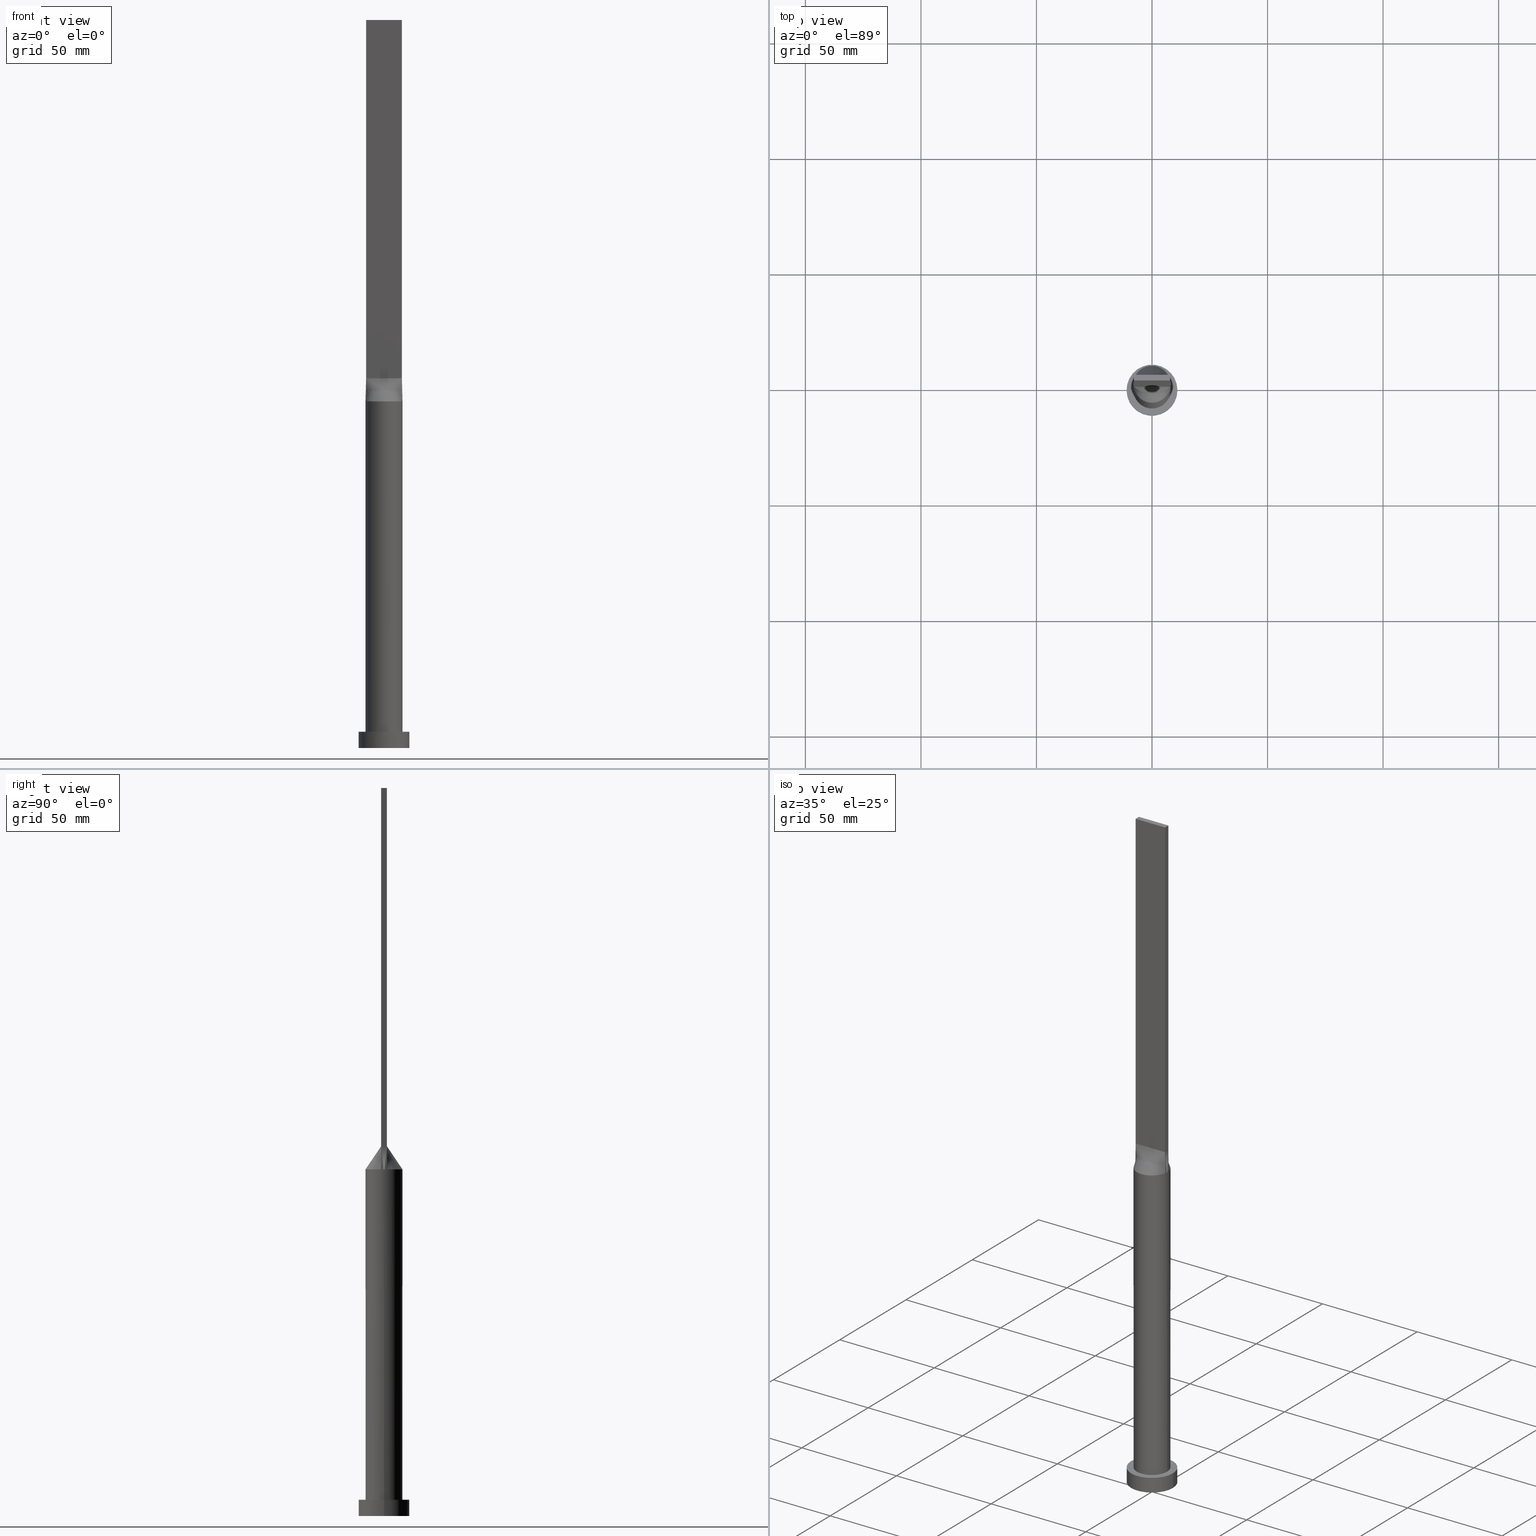
[diagram: canonical four-view strip — front | top / right | iso, engineering-drawing reading convention]
A machine part, canonical four-view strip (front | top / right | iso — engineering-drawing reading convention). The complete STEP part file that produces these views, byte-faithful:
ISO-10303-21;
HEADER;
FILE_DESCRIPTION (( 'STEP AP203' ),
    '1' );
FILE_NAME ('68cf.STEP',
    '2023-02-13T08:48:07',
    ( '' ),
    ( '' ),
    'SwSTEP 2.0',
    'SolidWorks 2019',
    '' );
FILE_SCHEMA (( 'CONFIG_CONTROL_DESIGN' ));
ENDSEC;

DATA;
#1 = EDGE_CURVE ( 'NONE', #638, #161, #126, .T. ) ;
#2 = CARTESIAN_POINT ( 'NONE',  ( 6.883287261198673512, 4.100742229440780484, 150.0000000000000284 ) ) ;
#3 = CARTESIAN_POINT ( 'NONE',  ( 7.597511974649646227, 2.632154125590748350, 149.9999999999999716 ) ) ;
#4 = CALENDAR_DATE ( 2023, 13, 2 ) ;
#5 = CARTESIAN_POINT ( 'NONE',  ( 4.217034177653714799, 6.817775467282659818, 150.0000000000000284 ) ) ;
#6 = CARTESIAN_POINT ( 'NONE',  ( -8.000000000000000000, 0.000000000000000000, 7.000000000000000000 ) ) ;
#7 = CARTESIAN_POINT ( 'NONE',  ( -6.389139692789916225, 4.834731051311460526, 150.0000000000000284 ) ) ;
#8 = CARTESIAN_POINT ( 'NONE',  ( 2.232993174580878204, 7.702525839322459156, 150.0000000000000284 ) ) ;
#9 = CARTESIAN_POINT ( 'NONE',  ( 0.000000000000000000, 0.000000000000000000, 150.0000000000000000 ) ) ;
#10 = ORIENTED_EDGE ( 'NONE', *, *, #166, .F. ) ;
#11 = APPROVAL_STATUS ( 'not_yet_approved' ) ;
#12 = ORIENTED_EDGE ( 'NONE', *, *, #401, .T. ) ;
#13 = EDGE_CURVE ( 'NONE', #48, #161, #282, .T. ) ;
#14 = APPROVAL_DATE_TIME ( #113, #145 ) ;
#15 = VECTOR ( 'NONE', #130, 1000.000000000000000 ) ;
#16 = CARTESIAN_POINT ( 'NONE',  ( -1.291666666666665408, 1.250000000000000222, 159.9999999999999716 ) ) ;
#17 = ORIENTED_EDGE ( 'NONE', *, *, #66, .T. ) ;
#18 = CARTESIAN_POINT ( 'NONE',  ( -5.434261125067508580, -5.890653037160103800, 150.0000000000000284 ) ) ;
#19 = VERTEX_POINT ( 'NONE', #341 ) ;
#20 = ADVANCED_FACE ( 'NONE', ( #88 ), #537, .T. ) ;
#21 = CARTESIAN_POINT ( 'NONE',  ( -2.762781956618985291, 7.527418670504290255, 150.0000000000000000 ) ) ;
#22 = ORIENTED_EDGE ( 'NONE', *, *, #1, .T. ) ;
#23 = DIRECTION ( 'NONE',  ( 1.000000000000000000, 0.000000000000000000, -0.000000000000000000 ) ) ;
#24 = CC_DESIGN_PERSON_AND_ORGANIZATION_ASSIGNMENT ( #560, #318, ( #187 ) ) ;
#25 = ORIENTED_EDGE ( 'NONE', *, *, #401, .F. ) ;
#26 = CARTESIAN_POINT ( 'NONE',  ( -4.217034177653715687, -6.817775467282659818, 150.0000000000000284 ) ) ;
#27 = SECURITY_CLASSIFICATION ( '', '', #152 ) ;
#28 = DIRECTION ( 'NONE',  ( -1.000000000000000000, -0.000000000000000000, -0.000000000000000000 ) ) ;
#29 = CIRCLE ( 'NONE', #565, 8.000000000000000000 ) ;
#30 = ORIENTED_EDGE ( 'NONE', *, *, #193, .F. ) ;
#31 = FACE_OUTER_BOUND ( 'NONE', #86, .T. ) ;
#32 = DIRECTION ( 'NONE',  ( 1.000000000000000000, 0.000000000000000000, 0.000000000000000000 ) ) ;
#33 = EDGE_CURVE ( 'NONE', #159, #214, #289, .T. ) ;
#34 = LINE ( 'NONE', #218, #482 ) ;
#35 = CARTESIAN_POINT ( 'NONE',  ( -5.489583333333333925, 1.250000000000000222, 160.0000000000000284 ) ) ;
#36 = DIRECTION ( 'NONE',  ( -0.000000000000000000, -0.000000000000000000, -1.000000000000000000 ) ) ;
#37 = CARTESIAN_POINT ( 'NONE',  ( 7.750000000000000000, -1.249999999999999778, 315.0000000000000000 ) ) ;
#38 = DIRECTION ( 'NONE',  ( 0.000000000000000000, -1.000000000000000000, 0.000000000000000000 ) ) ;
#39 = CARTESIAN_POINT ( 'NONE',  ( -7.750000000000000000, -1.249999999999998890, 160.0000000000000000 ) ) ;
#40 = CARTESIAN_POINT ( 'NONE',  ( 1.291666666666666741, -1.249999999999999112, 159.9999999999999716 ) ) ;
#41 = EDGE_CURVE ( 'NONE', #159, #165, #345, .T. ) ;
#42 = LINE ( 'NONE', #174, #453 ) ;
#43 = CARTESIAN_POINT ( 'NONE',  ( -7.750000000000000000, -1.249999999999998890, 315.0000000000000000 ) ) ;
#44 = CARTESIAN_POINT ( 'NONE',  ( 2.232993174580876428, -7.702525839322460044, 150.0000000000000000 ) ) ;
#45 = CARTESIAN_POINT ( 'NONE',  ( 11.00000000000000000, 1.347111479062088405E-15, 7.000000000000000000 ) ) ;
#46 = CARTESIAN_POINT ( 'NONE',  ( 4.520833333333333925, -1.249999999999999778, 160.0000000000000284 ) ) ;
#47 = CC_DESIGN_APPROVAL ( #145, ( #27 ) ) ;
#48 = VERTEX_POINT ( 'NONE', #185 ) ;
#49 = ADVANCED_FACE ( 'NONE', ( #536 ), #136, .T. ) ;
#50 = DIRECTION ( 'NONE',  ( 1.000000000000000000, 0.000000000000000000, 0.000000000000000000 ) ) ;
#51 = CARTESIAN_POINT ( 'NONE',  ( 7.897928965701177084, -1.273859510596965006, 150.0000000000000000 ) ) ;
#52 = LINE ( 'NONE', #199, #213 ) ;
#53 = CC_DESIGN_PERSON_AND_ORGANIZATION_ASSIGNMENT ( #313, #110, ( #398 ) ) ;
#54 = COORDINATED_UNIVERSAL_TIME_OFFSET ( 1, 0, .AHEAD. ) ;
#55 = CARTESIAN_POINT ( 'NONE',  ( 2.232993174580878204, 7.702525839322459156, 150.0000000000000284 ) ) ;
#56 = CARTESIAN_POINT ( 'NONE',  ( 3.754841939107309567, 7.084924699190306541, 150.0000000000000000 ) ) ;
#57 = EDGE_LOOP ( 'NONE', ( #215, #569, #30, #426 ) ) ;
#58 = APPROVAL_ROLE ( '' ) ;
#59 = VECTOR ( 'NONE', #384, 1000.000000000000000 ) ;
#60 = CARTESIAN_POINT ( 'NONE',  ( -5.434261125067506804, 5.890653037160105576, 150.0000000000000000 ) ) ;
#61 = CARTESIAN_POINT ( 'NONE',  ( 7.793128424795161990, 1.923622864214272088, 150.0000000000000000 ) ) ;
#62 = CARTESIAN_POINT ( 'NONE',  ( 5.056714967162550423, 6.220536417275850383, 150.0000000000000284 ) ) ;
#63 = ORIENTED_EDGE ( 'NONE', *, *, #33, .T. ) ;
#64 = CALENDAR_DATE ( 2023, 13, 2 ) ;
#65 = ORIENTED_EDGE ( 'NONE', *, *, #306, .F. ) ;
#66 = EDGE_CURVE ( 'NONE', #112, #257, #382, .T. ) ;
#67 = CARTESIAN_POINT ( 'NONE',  ( -7.597511974649646227, -2.632154125590747906, 149.9999999999999716 ) ) ;
#68 = LOCAL_TIME ( 9, 48, 7.000000000000000000, #509 ) ;
#69 = VECTOR ( 'NONE', #583, 1000.000000000000227 ) ;
#70 = ORIENTED_EDGE ( 'NONE', *, *, #249, .T. ) ;
#71 = ORIENTED_EDGE ( 'NONE', *, *, #227, .F. ) ;
#72 = CARTESIAN_POINT ( 'NONE',  ( 7.750000000000000000, -0.4166666666666669627, 159.9999999999999716 ) ) ;
#73 = ORIENTED_EDGE ( 'NONE', *, *, #114, .F. ) ;
#74 = ORIENTED_EDGE ( 'NONE', *, *, #615, .F. ) ;
#75 = DIRECTION ( 'NONE',  ( -0.01479123618026849905, 0.002385683254881964914, 0.9998877576246579801 ) ) ;
#76 = CARTESIAN_POINT ( 'NONE',  ( -6.100409024666552327, 5.197691498289451317, 150.0000000000000000 ) ) ;
#77 = ORIENTED_EDGE ( 'NONE', *, *, #227, .T. ) ;
#78 = CARTESIAN_POINT ( 'NONE',  ( -3.552083333333333481, -1.249999999999998890, 160.0000000000000284 ) ) ;
#79 = AXIS2_PLACEMENT_3D ( 'NONE', #323, #526, #23 ) ;
#80 = AXIS2_PLACEMENT_3D ( 'NONE', #212, #562, #554 ) ;
#81 = PRODUCT_DEFINITION_SHAPE ( 'NONE', 'NONE',  #300 ) ;
#82 = VECTOR ( 'NONE', #38, 1000.000000000000000 ) ;
#83 = DIRECTION ( 'NONE',  ( -0.000000000000000000, -0.000000000000000000, -1.000000000000000000 ) ) ;
#84 = CARTESIAN_POINT ( 'NONE',  ( 7.750000000000000000, 1.250000000000000222, 160.0000000000000000 ) ) ;
#85 = DIRECTION ( 'NONE',  ( 0.000000000000000000, 0.000000000000000000, 1.000000000000000000 ) ) ;
#86 = EDGE_LOOP ( 'NONE', ( #368, #322, #116, #10, #231, #98 ) ) ;
#87 = CARTESIAN_POINT ( 'NONE',  ( -0.5677556330368861426, -7.999999999999998224, 150.0000000000000000 ) ) ;
#88 = FACE_OUTER_BOUND ( 'NONE', #477, .T. ) ;
#89 = ADVANCED_FACE ( 'NONE', ( #629 ), #297, .F. ) ;
#90 = CARTESIAN_POINT ( 'NONE',  ( 6.389139692789917113, -4.834731051311460526, 150.0000000000000284 ) ) ;
#91 = DIRECTION ( 'NONE',  ( 0.000000000000000000, 0.000000000000000000, 1.000000000000000000 ) ) ;
#92 = CARTESIAN_POINT ( 'NONE',  ( 4.197916666666667851, -1.249999999999999778, 160.0000000000000284 ) ) ;
#93 = CARTESIAN_POINT ( 'NONE',  ( -7.750000000000000000, 1.250000000000000222, 160.0000000000000000 ) ) ;
#94 = CARTESIAN_POINT ( 'NONE',  ( 0.000000000000000000, 0.000000000000000000, 7.000000000000000000 ) ) ;
#95 = CARTESIAN_POINT ( 'NONE',  ( 3.552083333333333481, -1.249999999999999778, 160.0000000000000284 ) ) ;
#96 = CARTESIAN_POINT ( 'NONE',  ( 5.056714967162550423, 6.220536417275850383, 150.0000000000000284 ) ) ;
#97 = CARTESIAN_POINT ( 'NONE',  ( 6.458333333333333037, 1.250000000000000222, 159.9999999999999716 ) ) ;
#98 = ORIENTED_EDGE ( 'NONE', *, *, #615, .T. ) ;
#99 = DIRECTION ( 'NONE',  ( -1.000000000000000000, 0.000000000000000000, 0.000000000000000000 ) ) ;
#100 = FACE_OUTER_BOUND ( 'NONE', #567, .T. ) ;
#101 = CARTESIAN_POINT ( 'NONE',  ( 7.897928965701177084, 1.273859510596963451, 150.0000000000000000 ) ) ;
#102 = CARTESIAN_POINT ( 'NONE',  ( 7.088837466865212988, 3.729743859143727303, 150.0000000000000284 ) ) ;
#103 = CARTESIAN_POINT ( 'NONE',  ( 3.229166666666667407, 1.250000000000000222, 160.0000000000000284 ) ) ;
#104 = DATE_AND_TIME ( #64, #163 ) ;
#105 = CARTESIAN_POINT ( 'NONE',  ( -0.5677556330368852544, 7.999999999999998224, 150.0000000000000000 ) ) ;
#106 = DIRECTION ( 'NONE',  ( 0.000000000000000000, -1.000000000000000000, 0.000000000000000000 ) ) ;
#107 = CLOSED_SHELL ( 'NONE', ( #132, #155, #49, #441, #472, #503, #513, #432, #20, #270, #373, #286, #89, #535, #316 ) ) ;
#108 = DIRECTION ( 'NONE',  ( -0.000000000000000000, -0.000000000000000000, -1.000000000000000000 ) ) ;
#109 = AXIS2_PLACEMENT_3D ( 'NONE', #402, #552, #510 ) ;
#110 = PERSON_AND_ORGANIZATION_ROLE ( 'creator' ) ;
#111 = AXIS2_PLACEMENT_3D ( 'NONE', #434, #135, #338 ) ;
#112 = VERTEX_POINT ( 'NONE', #45 ) ;
#113 = DATE_AND_TIME ( #566, #427 ) ;
#114 = EDGE_CURVE ( 'NONE', #257, #413, #192, .T. ) ;
#115 = ORIENTED_EDGE ( 'NONE', *, *, #444, .T. ) ;
#116 = ORIENTED_EDGE ( 'NONE', *, *, #342, .F. ) ;
#117 = PLANE ( 'NONE',  #79 ) ;
#118 = LOCAL_TIME ( 9, 48, 7.000000000000000000, #54 ) ;
#119 = VECTOR ( 'NONE', #28, 1000.000000000000000 ) ;
#120 = ORIENTED_EDGE ( 'NONE', *, *, #41, .F. ) ;
#121 = EDGE_LOOP ( 'NONE', ( #272, #170, #156, #77 ) ) ;
#122 = CARTESIAN_POINT ( 'NONE',  ( -7.793128424795161990, -1.923622864214270978, 150.0000000000000000 ) ) ;
#123 = ORIENTED_EDGE ( 'NONE', *, *, #150, .T. ) ;
#124 = LINE ( 'NONE', #573, #408 ) ;
#125 = DIRECTION ( 'NONE',  ( 0.000000000000000000, -0.000000000000000000, -1.000000000000000000 ) ) ;
#126 = LINE ( 'NONE', #495, #449 ) ;
#127 = CARTESIAN_POINT ( 'NONE',  ( 7.999348843997323044, 0.4273286734864459868, 150.0000000000000000 ) ) ;
#128 = CARTESIAN_POINT ( 'NONE',  ( 0.000000000000000000, 0.000000000000000000, 150.0000000000000000 ) ) ;
#129 = DIRECTION ( 'NONE',  ( -1.000000000000000000, 0.000000000000000000, 0.000000000000000000 ) ) ;
#130 = DIRECTION ( 'NONE',  ( -0.000000000000000000, -0.000000000000000000, -1.000000000000000000 ) ) ;
#131 = CARTESIAN_POINT ( 'NONE',  ( 7.897939137640443974, 1.273861156091724789, 150.0000000000000000 ) ) ;
#132 = ADVANCED_FACE ( 'NONE', ( #586 ), #241, .T. ) ;
#133 = CARTESIAN_POINT ( 'NONE',  ( -7.999348843997323044, -0.4273286734864455427, 150.0000000000000000 ) ) ;
#134 = CARTESIAN_POINT ( 'NONE',  ( 3.229166666666666519, -1.249999999999999778, 160.0000000000000284 ) ) ;
#135 = DIRECTION ( 'NONE',  ( 1.000000000000000000, 0.000000000000000000, -0.000000000000000000 ) ) ;
#136 = CYLINDRICAL_SURFACE ( 'NONE', #415, 11.00000000000000000 ) ;
#137 = CARTESIAN_POINT ( 'NONE',  ( 2.260416666666666519, -1.249999999999999334, 159.9999999999999716 ) ) ;
#138 = CARTESIAN_POINT ( 'NONE',  ( -7.750000000000000000, 1.250000000000000222, 315.0000000000000000 ) ) ;
#139 = CARTESIAN_POINT ( 'NONE',  ( -7.750000000000000000, 0.4166666666666691277, 159.9999999999999716 ) ) ;
#140 = CARTESIAN_POINT ( 'NONE',  ( -2.232993174580879092, -7.702525839322459156, 150.0000000000000284 ) ) ;
#141 = DIRECTION ( 'NONE',  ( 1.000000000000000000, 1.776356839400250465E-15, 0.000000000000000000 ) ) ;
#142 = CARTESIAN_POINT ( 'NONE',  ( 1.614583333333333259, -1.249999999999999334, 159.9999999999999716 ) ) ;
#143 = DATE_AND_TIME ( #251, #68 ) ;
#144 = AXIS2_PLACEMENT_3D ( 'NONE', #635, #435, #578 ) ;
#145 = APPROVAL ( #365, 'NEUR�EN�' ) ;
#146 = CARTESIAN_POINT ( 'NONE',  ( 7.965542217898607724, -0.8546573469728951933, 150.0000000000000000 ) ) ;
#147 = DIRECTION ( 'NONE',  ( 0.000000000000000000, 1.000000000000000000, 0.000000000000000000 ) ) ;
#148 = AXIS2_PLACEMENT_3D ( 'NONE', #375, #321, #327 ) ;
#149 = CARTESIAN_POINT ( 'NONE',  ( 2.260416666666668295, 1.250000000000000222, 160.0000000000000000 ) ) ;
#150 = EDGE_CURVE ( 'NONE', #550, #413, #175, .T. ) ;
#151 = DIRECTION ( 'NONE',  ( 0.000000000000000000, 0.000000000000000000, 1.000000000000000000 ) ) ;
#152 = SECURITY_CLASSIFICATION_LEVEL ( 'unclassified' ) ;
#153 = ORIENTED_EDGE ( 'NONE', *, *, #580, .F. ) ;
#154 = APPROVAL_DATE_TIME ( #104, #475 ) ;
#155 = ADVANCED_FACE ( 'NONE', ( #225 ), #623, .T. ) ;
#156 = ORIENTED_EDGE ( 'NONE', *, *, #114, .T. ) ;
#157 = CC_DESIGN_PERSON_AND_ORGANIZATION_ASSIGNMENT ( #516, #363, ( #27 ) ) ;
#158 = CARTESIAN_POINT ( 'NONE',  ( -3.754841939107308235, 7.084924699190308317, 150.0000000000000000 ) ) ;
#159 = VERTEX_POINT ( 'NONE', #230 ) ;
#160 = CARTESIAN_POINT ( 'NONE',  ( -7.897928965701177084, -1.273859510596962119, 150.0000000000000000 ) ) ;
#161 = VERTEX_POINT ( 'NONE', #438 ) ;
#162 = CARTESIAN_POINT ( 'NONE',  ( -7.823964482850588986, 1.261929755298481393, 155.0000000000000000 ) ) ;
#163 = LOCAL_TIME ( 9, 48, 7.000000000000000000, #557 ) ;
#164 = CARTESIAN_POINT ( 'NONE',  ( -2.260416666666665630, 1.250000000000000222, 159.9999999999999716 ) ) ;
#165 = VERTEX_POINT ( 'NONE', #339 ) ;
#166 = EDGE_CURVE ( 'NONE', #217, #370, #493, .T. ) ;
#167 = CARTESIAN_POINT ( 'NONE',  ( -2.762781956618986623, -7.527418670504289366, 150.0000000000000284 ) ) ;
#168 = CARTESIAN_POINT ( 'NONE',  ( 7.750000000000000000, 1.250000000000000222, 315.0000000000000000 ) ) ;
#169 = B_SPLINE_CURVE_WITH_KNOTS ( 'NONE', 3,
 ( #131, #548, #514, #102, #2, #399, #448, #347, #96, #5, #604, #350, #55, #599, #405, #105, #361, #304, #198, #358, #312, #454, #60, #462, #7, #203, #409, #607, #195, #601 ),
 .UNSPECIFIED., .F., .F.,
 ( 4, 2, 2, 2, 2, 2, 2, 2, 2, 2, 2, 2, 2, 2, 4 ),
 ( 0.000000000000000000, 0.1250000000000000000, 0.1875000000000000000, 0.2500000000000000000, 0.3125000000000000000, 0.3750000000000000000, 0.4375000000000000000, 0.5000000000000000000, 0.5625000000000000000, 0.6250000000000000000, 0.6875000000000000000, 0.7500000000000000000, 0.8125000000000000000, 0.8750000000000000000, 1.000000000000000000 ),
 .UNSPECIFIED. ) ;
#170 = ORIENTED_EDGE ( 'NONE', *, *, #419, .F. ) ;
#171 = B_SPLINE_SURFACE_WITH_KNOTS ( 'NONE', 3, 1, ( 
 ( #160, #533 ),
 ( #122, #228 ),
 ( #67, #476 ),
 ( #330, #421 ),
 ( #283, #487 ),
 ( #273, #625 ),
 ( #177, #481 ),
 ( #18, #78 ),
 ( #530, #371 ),
 ( #26, #216 ),
 ( #222, #428 ),
 ( #167, #378 ),
 ( #140, #541 ),
 ( #240, #588 ),
 ( #87, #287 ),
 ( #397, #343 ),
 ( #544, #290 ),
 ( #44, #40 ),
 ( #447, #142 ),
 ( #439, #137 ),
 ( #183, #349 ),
 ( #547, #134 ),
 ( #293, #95 ),
 ( #404, #92 ),
 ( #90, #46 ),
 ( #492, #596 ),
 ( #186, #452 ),
 ( #299, #639 ),
 ( #551, #505 ),
 ( #628, #499 ) ),
 .UNSPECIFIED., .F., .F., .F.,
 ( 4, 2, 2, 2, 2, 2, 2, 2, 2, 2, 2, 2, 2, 2, 4 ),
 ( 2, 2 ),
 ( 0.000000000000000000, 0.1250000000000000000, 0.1875000000000000000, 0.2500000000000000000, 0.3125000000000000000, 0.3750000000000000000, 0.4375000000000000000, 0.5000000000000000000, 0.5625000000000000000, 0.6250000000000000000, 0.6875000000000000000, 0.7500000000000000000, 0.8125000000000000000, 0.8750000000000000000, 1.000000000000000000 ),
 ( 0.000000000000000000, 1.000000000000000000 ),
 .UNSPECIFIED. ) ;
#172 = EDGE_CURVE ( 'NONE', #638, #370, #301, .T. ) ;
#173 = DIRECTION ( 'NONE',  ( -0.000000000000000000, -0.000000000000000000, -1.000000000000000000 ) ) ;
#174 = CARTESIAN_POINT ( 'NONE',  ( 7.750000000000000000, 1.250000000000000222, 160.0000000000000000 ) ) ;
#175 = CIRCLE ( 'NONE', #353, 11.00000000000000000 ) ;
#176 = CARTESIAN_POINT ( 'NONE',  ( 0.000000000000000000, 0.000000000000000000, 7.000000000000000000 ) ) ;
#177 = CARTESIAN_POINT ( 'NONE',  ( -6.100409024666552327, -5.197691498289450429, 150.0000000000000284 ) ) ;
#178 = APPROVAL_PERSON_ORGANIZATION ( #606, #145, #202 ) ;
#179 = EDGE_CURVE ( 'NONE', #165, #529, #254, .T. ) ;
#180 = CARTESIAN_POINT ( 'NONE',  ( -6.883287261198669960, 4.100742229440782260, 150.0000000000000000 ) ) ;
#181 = VERTEX_POINT ( 'NONE', #6 ) ;
#182 = ORIENTED_EDGE ( 'NONE', *, *, #444, .F. ) ;
#183 = CARTESIAN_POINT ( 'NONE',  ( 4.217034177653714799, -6.817775467282661594, 150.0000000000000284 ) ) ;
#184 = CARTESIAN_POINT ( 'NONE',  ( -5.166666666666666963, 1.250000000000000222, 160.0000000000000284 ) ) ;
#185 = CARTESIAN_POINT ( 'NONE',  ( 7.750000000000000000, -1.249999999999999778, 315.0000000000000000 ) ) ;
#186 = CARTESIAN_POINT ( 'NONE',  ( 7.088837466865208548, -3.729743859143727747, 149.9999999999999716 ) ) ;
#187 = PRODUCT ( '68cf', '68cf', '', ( #248 ) ) ;
#188 = LINE ( 'NONE', #138, #324 ) ;
#189 = CARTESIAN_POINT ( 'NONE',  ( -7.965542217898607724, 0.8546573469728943051, 150.0000000000000000 ) ) ;
#190 = DIRECTION ( 'NONE',  ( 1.000000000000000000, 0.000000000000000000, 0.000000000000000000 ) ) ;
#191 = AXIS2_PLACEMENT_3D ( 'NONE', #128, #344, #494 ) ;
#192 = LINE ( 'NONE', #239, #219 ) ;
#193 = EDGE_CURVE ( 'NONE', #48, #159, #52, .T. ) ;
#194 = DIRECTION ( 'NONE',  ( 1.000000000000000000, 0.000000000000000000, 0.000000000000000000 ) ) ;
#195 = CARTESIAN_POINT ( 'NONE',  ( -7.793128424795161102, 1.923622864214273198, 150.0000000000000000 ) ) ;
#196 = CARTESIAN_POINT ( 'NONE',  ( 6.389139692789920666, 4.834731051311459638, 150.0000000000000284 ) ) ;
#197 =( LENGTH_UNIT ( ) NAMED_UNIT ( * ) SI_UNIT ( .MILLI., .METRE. ) );
#198 = CARTESIAN_POINT ( 'NONE',  ( -2.762781956618985291, 7.527418670504290255, 150.0000000000000000 ) ) ;
#199 = CARTESIAN_POINT ( 'NONE',  ( 7.750000000000000000, -1.249999999999999778, 315.0000000000000000 ) ) ;
#200 = AXIS2_PLACEMENT_3D ( 'NONE', #595, #151, #359 ) ;
#201 = APPROVAL_PERSON_ORGANIZATION ( #512, #540, #58 ) ;
#202 = APPROVAL_ROLE ( '' ) ;
#203 = CARTESIAN_POINT ( 'NONE',  ( -6.883287261198669960, 4.100742229440782260, 150.0000000000000000 ) ) ;
#204 = DIRECTION ( 'NONE',  ( -0.01479123618026849905, -0.002385683254881921546, -0.9998877576246579801 ) ) ;
#205 = APPLICATION_CONTEXT ( 'configuration controlled 3d designs of mechanical parts and assemblies' ) ;
#206 = CARTESIAN_POINT ( 'NONE',  ( -6.389139692789916225, 4.834731051311460526, 150.0000000000000284 ) ) ;
#207 = ORIENTED_EDGE ( 'NONE', *, *, #457, .T. ) ;
#208 = DATE_AND_TIME ( #4, #118 ) ;
#209 = ORIENTED_EDGE ( 'NONE', *, *, #179, .F. ) ;
#210 = ORIENTED_EDGE ( 'NONE', *, *, #580, .T. ) ;
#211 = AXIS2_PLACEMENT_3D ( 'NONE', #242, #496, #50 ) ;
#212 = CARTESIAN_POINT ( 'NONE',  ( 0.000000000000000000, 0.000000000000000000, 0.000000000000000000 ) ) ;
#213 = VECTOR ( 'NONE', #147, 1000.000000000000000 ) ;
#214 = VERTEX_POINT ( 'NONE', #348 ) ;
#215 = ORIENTED_EDGE ( 'NONE', *, *, #281, .T. ) ;
#216 = CARTESIAN_POINT ( 'NONE',  ( -2.583333333333333481, -1.249999999999998890, 160.0000000000000000 ) ) ;
#217 = VERTEX_POINT ( 'NONE', #410 ) ;
#218 = CARTESIAN_POINT ( 'NONE',  ( -7.750000000000000000, -1.249999999999998890, 315.0000000000000000 ) ) ;
#219 = VECTOR ( 'NONE', #83, 1000.000000000000000 ) ;
#220 = EDGE_CURVE ( 'NONE', #19, #298, #362, .T. ) ;
#221 = EDGE_LOOP ( 'NONE', ( #263, #519, #123, #73 ) ) ;
#222 = CARTESIAN_POINT ( 'NONE',  ( -3.754841939107310456, -7.084924699190306541, 150.0000000000000000 ) ) ;
#223 = EDGE_LOOP ( 'NONE', ( #613, #259, #115, #325 ) ) ;
#224 = CARTESIAN_POINT ( 'NONE',  ( 7.750000000000000000, 0.8333333333333331483, 159.9999999999999716 ) ) ;
#225 = FACE_OUTER_BOUND ( 'NONE', #221, .T. ) ;
#226 = B_SPLINE_SURFACE_WITH_KNOTS ( 'NONE', 3, 1, ( 
 ( #51, #247 ),
 ( #146, #555 ),
 ( #308, #72 ),
 ( #127, #269 ),
 ( #436, #224 ),
 ( #478, #84 ) ),
 .UNSPECIFIED., .F., .F., .F.,
 ( 4, 2, 4 ),
 ( 2, 2 ),
 ( 0.000000000000000000, 0.5000000000000000000, 1.000000000000000000 ),
 ( 0.000000000000000000, 1.000000000000000000 ),
 .UNSPECIFIED. ) ;
#227 = EDGE_CURVE ( 'NONE', #413, #550, #276, .T. ) ;
#228 = CARTESIAN_POINT ( 'NONE',  ( -7.104166666666666963, -1.249999999999998890, 159.9999999999999716 ) ) ;
#229 = FACE_OUTER_BOUND ( 'NONE', #223, .T. ) ;
#230 = CARTESIAN_POINT ( 'NONE',  ( 7.750000000000000000, 1.250000000000000222, 315.0000000000000000 ) ) ;
#231 = ORIENTED_EDGE ( 'NONE', *, *, #508, .T. ) ;
#232 = DIRECTION ( 'NONE',  ( 0.000000000000000000, 0.000000000000000000, 1.000000000000000000 ) ) ;
#233 = CARTESIAN_POINT ( 'NONE',  ( 0.000000000000000000, 0.000000000000000000, 7.000000000000000000 ) ) ;
#234 = VECTOR ( 'NONE', #75, 1000.000000000000227 ) ;
#235 = CARTESIAN_POINT ( 'NONE',  ( 7.750000000000000000, 1.250000000000000222, 315.0000000000000000 ) ) ;
#236 = ORIENTED_EDGE ( 'NONE', *, *, #150, .F. ) ;
#237 =( NAMED_UNIT ( * ) PLANE_ANGLE_UNIT ( ) SI_UNIT ( $, .RADIAN. ) );
#238 = FACE_OUTER_BOUND ( 'NONE', #451, .T. ) ;
#239 = CARTESIAN_POINT ( 'NONE',  ( -11.00000000000000000, 0.000000000000000000, 7.000000000000000000 ) ) ;
#240 = CARTESIAN_POINT ( 'NONE',  ( -1.135368687448996994, -7.938897956688654389, 150.0000000000000284 ) ) ;
#241 = CYLINDRICAL_SURFACE ( 'NONE', #144, 8.000000000000000000 ) ;
#242 = CARTESIAN_POINT ( 'NONE',  ( 0.000000000000000000, 0.000000000000000000, 150.0000000000000000 ) ) ;
#243 = CARTESIAN_POINT ( 'NONE',  ( 7.088837466865212988, 3.729743859143727303, 150.0000000000000284 ) ) ;
#244 = PRODUCT_RELATED_PRODUCT_CATEGORY ( 'detail', '', ( #187 ) ) ;
#245 = AXIS2_PLACEMENT_3D ( 'NONE', #168, #577, #125 ) ;
#246 = CARTESIAN_POINT ( 'NONE',  ( -7.750000000000000000, -1.249999999999998890, 160.0000000000000000 ) ) ;
#247 = CARTESIAN_POINT ( 'NONE',  ( 7.750000000000000000, -1.249999999999999778, 160.0000000000000000 ) ) ;
#248 = MECHANICAL_CONTEXT ( 'NONE', #637, 'mechanical' ) ;
#249 = EDGE_CURVE ( 'NONE', #367, #19, #29, .T. ) ;
#250 = CARTESIAN_POINT ( 'NONE',  ( 2.762781956618984847, 7.527418670504289366, 150.0000000000000284 ) ) ;
#251 = CALENDAR_DATE ( 2023, 13, 2 ) ;
#252 = CC_DESIGN_DATE_AND_TIME_ASSIGNMENT ( #208, #608, ( #27 ) ) ;
#253 = ORIENTED_EDGE ( 'NONE', *, *, #1, .F. ) ;
#254 = LINE ( 'NONE', #602, #429 ) ;
#255 = CIRCLE ( 'NONE', #416, 8.000000000000000000 ) ;
#256 = CALENDAR_DATE ( 2023, 13, 2 ) ;
#257 = VERTEX_POINT ( 'NONE', #553 ) ;
#258 = APPROVAL_STATUS ( 'not_yet_approved' ) ;
#259 = ORIENTED_EDGE ( 'NONE', *, *, #179, .T. ) ;
#260 = CARTESIAN_POINT ( 'NONE',  ( 0.3229166666666679064, 1.250000000000000444, 159.9999999999999716 ) ) ;
#261 = ORIENTED_EDGE ( 'NONE', *, *, #319, .T. ) ;
#262 = SHAPE_DEFINITION_REPRESENTATION ( #81, #490 ) ;
#263 = ORIENTED_EDGE ( 'NONE', *, *, #66, .F. ) ;
#264 = CIRCLE ( 'NONE', #211, 8.000000000000000000 ) ;
#265 = DIRECTION ( 'NONE',  ( -1.000000000000000000, 0.000000000000000000, 0.000000000000000000 ) ) ;
#266 = CARTESIAN_POINT ( 'NONE',  ( -2.583333333333332593, 1.250000000000000222, 160.0000000000000000 ) ) ;
#267 = VERTEX_POINT ( 'NONE', #407 ) ;
#268 = ORIENTED_EDGE ( 'NONE', *, *, #172, .F. ) ;
#269 = CARTESIAN_POINT ( 'NONE',  ( 7.750000000000000000, 0.4166666666666662966, 159.9999999999999716 ) ) ;
#270 = ADVANCED_FACE ( 'NONE', ( #515 ), #278, .T. ) ;
#271 = EDGE_LOOP ( 'NONE', ( #620, #329, #120, #63 ) ) ;
#272 = ORIENTED_EDGE ( 'NONE', *, *, #390, .F. ) ;
#273 = CARTESIAN_POINT ( 'NONE',  ( -6.389139692789920666, -4.834731051311459638, 150.0000000000000284 ) ) ;
#274 = CARTESIAN_POINT ( 'NONE',  ( -4.197916666666666075, 1.250000000000000222, 160.0000000000000284 ) ) ;
#275 = ORIENTED_EDGE ( 'NONE', *, *, #294, .F. ) ;
#276 = CIRCLE ( 'NONE', #594, 11.00000000000000000 ) ;
#277 = PLANE ( 'NONE',  #148 ) ;
#278 = B_SPLINE_SURFACE_WITH_KNOTS ( 'NONE', 3, 1, ( 
 ( #101, #556 ),
 ( #61, #549 ),
 ( #3, #97 ),
 ( #243, #466 ),
 ( #455, #640 ),
 ( #196, #600 ),
 ( #305, #464 ),
 ( #458, #406 ),
 ( #62, #103 ),
 ( #309, #511 ),
 ( #56, #149 ),
 ( #250, #459 ),
 ( #8, #605 ),
 ( #558, #518 ),
 ( #479, #260 ),
 ( #425, #473 ),
 ( #524, #417 ),
 ( #469, #16 ),
 ( #21, #612 ),
 ( #158, #164 ),
 ( #568, #266 ),
 ( #376, #574 ),
 ( #328, #528 ),
 ( #76, #274 ),
 ( #206, #412 ),
 ( #180, #184 ),
 ( #295, #35 ),
 ( #622, #589 ),
 ( #379, #497 ),
 ( #284, #291 ) ),
 .UNSPECIFIED., .F., .F., .F.,
 ( 4, 2, 2, 2, 2, 2, 2, 2, 2, 2, 2, 2, 2, 2, 4 ),
 ( 2, 2 ),
 ( 0.000000000000000000, 0.1250000000000000000, 0.1875000000000000000, 0.2500000000000000000, 0.3125000000000000000, 0.3750000000000000000, 0.4375000000000000000, 0.5000000000000000000, 0.5625000000000000000, 0.6250000000000000000, 0.6875000000000000000, 0.7500000000000000000, 0.8125000000000000000, 0.8750000000000000000, 1.000000000000000000 ),
 ( 0.000000000000000000, 1.000000000000000000 ),
 .UNSPECIFIED. ) ;
#279 = CIRCLE ( 'NONE', #366, 8.000000000000000000 ) ;
#280 = DIRECTION ( 'NONE',  ( 0.000000000000000000, 0.000000000000000000, 1.000000000000000000 ) ) ;
#281 = EDGE_CURVE ( 'NONE', #161, #214, #42, .T. ) ;
#282 = LINE ( 'NONE', #387, #59 ) ;
#283 = CARTESIAN_POINT ( 'NONE',  ( -6.883287261198673512, -4.100742229440781372, 150.0000000000000284 ) ) ;
#284 = CARTESIAN_POINT ( 'NONE',  ( -7.897928965701177084, 1.273859510596962563, 150.0000000000000000 ) ) ;
#285 = ORIENTED_EDGE ( 'NONE', *, *, #457, .F. ) ;
#286 = ADVANCED_FACE ( 'NONE', ( #238 ), #288, .F. ) ;
#287 = CARTESIAN_POINT ( 'NONE',  ( -0.3229166666666666297, -1.249999999999999112, 159.9999999999999716 ) ) ;
#288 = PLANE ( 'NONE',  #111 ) ;
#289 = LINE ( 'NONE', #532, #634 ) ;
#290 = CARTESIAN_POINT ( 'NONE',  ( 0.6458333333333333703, -1.249999999999999112, 159.9999999999999716 ) ) ;
#291 = CARTESIAN_POINT ( 'NONE',  ( -7.750000000000000000, 1.250000000000000222, 160.0000000000000000 ) ) ;
#292 = DIRECTION ( 'NONE',  ( -1.000000000000000000, 0.000000000000000000, 0.000000000000000000 ) ) ;
#293 = CARTESIAN_POINT ( 'NONE',  ( 5.434261125067507692, -5.890653037160105576, 150.0000000000000000 ) ) ;
#294 = EDGE_CURVE ( 'NONE', #298, #181, #279, .T. ) ;
#295 = CARTESIAN_POINT ( 'NONE',  ( -7.088837466865208548, 3.729743859143727747, 149.9999999999999716 ) ) ;
#296 = DESIGN_CONTEXT ( 'detailed design', #205, 'design' ) ;
#297 = PLANE ( 'NONE',  #470 ) ;
#298 = VERTEX_POINT ( 'NONE', #383 ) ;
#299 = CARTESIAN_POINT ( 'NONE',  ( 7.597511974649644451, -2.632154125590752347, 150.0000000000000000 ) ) ;
#300 = PRODUCT_DEFINITION ( 'NEZN�M�', '', #398, #296 ) ;
#301 = LINE ( 'NONE', #507, #591 ) ;
#302 = ORIENTED_EDGE ( 'NONE', *, *, #609, .F. ) ;
#303 = CARTESIAN_POINT ( 'NONE',  ( 11.00000000000000000, 1.347111479062088405E-15, 0.000000000000000000 ) ) ;
#304 = CARTESIAN_POINT ( 'NONE',  ( -2.232993174580875539, 7.702525839322460044, 150.0000000000000000 ) ) ;
#305 = CARTESIAN_POINT ( 'NONE',  ( 6.100409024666552327, 5.197691498289451317, 150.0000000000000284 ) ) ;
#306 = EDGE_CURVE ( 'NONE', #326, #638, #485, .T. ) ;
#307 = COORDINATED_UNIVERSAL_TIME_OFFSET ( 1, 0, .AHEAD. ) ;
#308 = CARTESIAN_POINT ( 'NONE',  ( 7.999348843997323044, -0.4273286734864481518, 150.0000000000000000 ) ) ;
#309 = CARTESIAN_POINT ( 'NONE',  ( 4.217034177653714799, 6.817775467282659818, 150.0000000000000284 ) ) ;
#310 = CC_DESIGN_PERSON_AND_ORGANIZATION_ASSIGNMENT ( #603, #311, ( #300 ) ) ;
#311 = PERSON_AND_ORGANIZATION_ROLE ( 'creator' ) ;
#312 = CARTESIAN_POINT ( 'NONE',  ( -4.217034177653714799, 6.817775467282660706, 150.0000000000000284 ) ) ;
#313 = PERSON_AND_ORGANIZATION ( #393, #355 ) ;
#314 = DIRECTION ( 'NONE',  ( 0.000000000000000000, 0.000000000000000000, 1.000000000000000000 ) ) ;
#315 = APPROVAL_ROLE ( '' ) ;
#316 = ADVANCED_FACE ( 'NONE', ( #229 ), #631, .T. ) ;
#317 = ORIENTED_EDGE ( 'NONE', *, *, #369, .F. ) ;
#318 = PERSON_AND_ORGANIZATION_ROLE ( 'design_owner' ) ;
#319 = EDGE_CURVE ( 'NONE', #165, #326, #188, .T. ) ;
#320 = ORIENTED_EDGE ( 'NONE', *, *, #281, .F. ) ;
#321 = DIRECTION ( 'NONE',  ( 0.000000000000000000, 0.000000000000000000, 1.000000000000000000 ) ) ;
#322 = ORIENTED_EDGE ( 'NONE', *, *, #249, .F. ) ;
#323 = CARTESIAN_POINT ( 'NONE',  ( 0.000000000000000000, 0.000000000000000000, 7.000000000000000000 ) ) ;
#324 = VECTOR ( 'NONE', #488, 1000.000000000000000 ) ;
#325 = ORIENTED_EDGE ( 'NONE', *, *, #193, .T. ) ;
#326 = VERTEX_POINT ( 'NONE', #581 ) ;
#327 = DIRECTION ( 'NONE',  ( 1.000000000000000000, 0.000000000000000000, -0.000000000000000000 ) ) ;
#328 = CARTESIAN_POINT ( 'NONE',  ( -5.434261125067506804, 5.890653037160105576, 150.0000000000000000 ) ) ;
#329 = ORIENTED_EDGE ( 'NONE', *, *, #319, .F. ) ;
#330 = CARTESIAN_POINT ( 'NONE',  ( -7.088837466865212988, -3.729743859143725526, 150.0000000000000284 ) ) ;
#331 = CARTESIAN_POINT ( 'NONE',  ( 11.00000000000000000, 1.347111479062088405E-15, 7.000000000000000000 ) ) ;
#332 = DIRECTION ( 'NONE',  ( -0.000000000000000000, -0.000000000000000000, -1.000000000000000000 ) ) ;
#333 =( GEOMETRIC_REPRESENTATION_CONTEXT ( 3 ) GLOBAL_UNCERTAINTY_ASSIGNED_CONTEXT ( ( #395 ) ) GLOBAL_UNIT_ASSIGNED_CONTEXT ( ( #197, #237, #360 ) ) REPRESENTATION_CONTEXT ( 'NONE', 'WORKASPACE' ) );
#334 = CARTESIAN_POINT ( 'NONE',  ( 7.823964482850588986, -1.261929755298481393, 155.0000000000000000 ) ) ;
#335 = AXIS2_PLACEMENT_3D ( 'NONE', #394, #538, #592 ) ;
#336 = PLANE ( 'NONE',  #245 ) ;
#337 = CARTESIAN_POINT ( 'NONE',  ( 0.000000000000000000, 0.000000000000000000, 7.000000000000000000 ) ) ;
#338 = DIRECTION ( 'NONE',  ( -0.000000000000000000, 0.000000000000000000, -1.000000000000000000 ) ) ;
#339 = CARTESIAN_POINT ( 'NONE',  ( -7.750000000000000000, 1.250000000000000222, 315.0000000000000000 ) ) ;
#340 = CARTESIAN_POINT ( 'NONE',  ( 0.000000000000000000, 0.000000000000000000, 7.000000000000000000 ) ) ;
#341 = CARTESIAN_POINT ( 'NONE',  ( 7.999674421998661522, 1.953788361903730848E-15, 150.0000000000000000 ) ) ;
#342 = EDGE_CURVE ( 'NONE', #370, #367, #506, .T. ) ;
#343 = CARTESIAN_POINT ( 'NONE',  ( 0.3229166666666667407, -1.249999999999999112, 159.9999999999999716 ) ) ;
#344 = DIRECTION ( 'NONE',  ( 0.000000000000000000, 0.000000000000000000, 1.000000000000000000 ) ) ;
#345 = LINE ( 'NONE', #235, #624 ) ;
#346 = CARTESIAN_POINT ( 'NONE',  ( 0.000000000000000000, 0.000000000000000000, 150.0000000000000000 ) ) ;
#347 = CARTESIAN_POINT ( 'NONE',  ( 5.434261125067508580, 5.890653037160103800, 150.0000000000000284 ) ) ;
#348 = CARTESIAN_POINT ( 'NONE',  ( 7.750000000000000000, 1.250000000000000222, 160.0000000000000000 ) ) ;
#349 = CARTESIAN_POINT ( 'NONE',  ( 2.583333333333333481, -1.249999999999999556, 160.0000000000000000 ) ) ;
#350 = CARTESIAN_POINT ( 'NONE',  ( 2.762781956618984847, 7.527418670504289366, 150.0000000000000284 ) ) ;
#351 = EDGE_LOOP ( 'NONE', ( #71, #236 ) ) ;
#352 = DIRECTION ( 'NONE',  ( 1.000000000000000000, 0.000000000000000000, 0.000000000000000000 ) ) ;
#353 = AXIS2_PLACEMENT_3D ( 'NONE', #486, #85, #32 ) ;
#354 = APPROVAL_DATE_TIME ( #143, #540 ) ;
#355 = ORGANIZATION ( 'NEUR�EN�', 'NEUR�EN�', '' ) ;
#356 = CC_DESIGN_PERSON_AND_ORGANIZATION_ASSIGNMENT ( #517, #520, ( #398 ) ) ;
#357 = APPLICATION_PROTOCOL_DEFINITION ( 'international standard', 'config_control_design', 1994, #637 ) ;
#358 = CARTESIAN_POINT ( 'NONE',  ( -3.754841939107308235, 7.084924699190308317, 150.0000000000000000 ) ) ;
#359 = DIRECTION ( 'NONE',  ( 1.000000000000000000, 0.000000000000000000, 0.000000000000000000 ) ) ;
#360 =( NAMED_UNIT ( * ) SI_UNIT ( $, .STERADIAN. ) SOLID_ANGLE_UNIT ( ) );
#361 = CARTESIAN_POINT ( 'NONE',  ( -1.135368687448994329, 7.938897956688654389, 150.0000000000000284 ) ) ;
#362 = LINE ( 'NONE', #403, #563 ) ;
#363 = PERSON_AND_ORGANIZATION_ROLE ( 'classification_officer' ) ;
#364 = AXIS2_PLACEMENT_3D ( 'NONE', #522, #484, #265 ) ;
#365 = APPROVAL_STATUS ( 'not_yet_approved' ) ;
#366 = AXIS2_PLACEMENT_3D ( 'NONE', #233, #280, #445 ) ;
#367 = VERTEX_POINT ( 'NONE', #545 ) ;
#368 = ORIENTED_EDGE ( 'NONE', *, *, #220, .F. ) ;
#369 = EDGE_CURVE ( 'NONE', #214, #326, #442, .T. ) ;
#370 = VERTEX_POINT ( 'NONE', #626 ) ;
#371 = CARTESIAN_POINT ( 'NONE',  ( -3.229166666666666519, -1.249999999999998890, 160.0000000000000284 ) ) ;
#372 = AXIS2_PLACEMENT_3D ( 'NONE', #176, #582, #129 ) ;
#373 = ADVANCED_FACE ( 'NONE', ( #430 ), #336, .F. ) ;
#374 = EDGE_LOOP ( 'NONE', ( #22, #618, #182, #380 ) ) ;
#375 = CARTESIAN_POINT ( 'NONE',  ( 0.000000000000000000, 0.000000000000000000, 0.000000000000000000 ) ) ;
#376 = CARTESIAN_POINT ( 'NONE',  ( -5.056714967162549534, 6.220536417275851271, 150.0000000000000000 ) ) ;
#377 = ORIENTED_EDGE ( 'NONE', *, *, #342, .T. ) ;
#378 = CARTESIAN_POINT ( 'NONE',  ( -1.614583333333333481, -1.249999999999999112, 159.9999999999999716 ) ) ;
#379 = CARTESIAN_POINT ( 'NONE',  ( -7.793128424795161102, 1.923622864214273198, 150.0000000000000000 ) ) ;
#380 = ORIENTED_EDGE ( 'NONE', *, *, #559, .T. ) ;
#381 = LINE ( 'NONE', #334, #234 ) ;
#382 = CIRCLE ( 'NONE', #424, 11.00000000000000000 ) ;
#383 = CARTESIAN_POINT ( 'NONE',  ( 8.000000000000000000, 9.797174393178825657E-16, 7.000000000000000000 ) ) ;
#384 = DIRECTION ( 'NONE',  ( -0.000000000000000000, -0.000000000000000000, -1.000000000000000000 ) ) ;
#385 = CC_DESIGN_SECURITY_CLASSIFICATION ( #27, ( #398 ) ) ;
#386 = DIRECTION ( 'NONE',  ( 1.000000000000000000, -5.595882180570345426E-17, 0.000000000000000000 ) ) ;
#387 = CARTESIAN_POINT ( 'NONE',  ( 7.750000000000000000, -1.249999999999999778, 315.0000000000000000 ) ) ;
#388 = CARTESIAN_POINT ( 'NONE',  ( -7.750000000000000000, -1.249999999999998890, 315.0000000000000000 ) ) ;
#389 = CARTESIAN_POINT ( 'NONE',  ( -7.750000000000000000, 1.250000000000000222, 160.0000000000000000 ) ) ;
#390 = EDGE_CURVE ( 'NONE', #112, #550, #534, .T. ) ;
#391 = DIRECTION ( 'NONE',  ( 5.595882180570345426E-17, 1.000000000000000000, -0.000000000000000000 ) ) ;
#392 = DIRECTION ( 'NONE',  ( 0.000000000000000000, 0.000000000000000000, 1.000000000000000000 ) ) ;
#393 = PERSON ( 'NEUR�EN�', 'NEUR�EN�', 'NEUR�EN�', ('NEUR�EN�'), ('NEUR�EN�'), ('NEUR�EN�') ) ;
#394 = CARTESIAN_POINT ( 'NONE',  ( 0.000000000000000000, 0.000000000000000000, 315.0000000000000000 ) ) ;
#395 = UNCERTAINTY_MEASURE_WITH_UNIT (LENGTH_MEASURE( 1.000000000000000082E-05 ), #197, 'distance_accuracy_value', 'NONE');
#396 = CARTESIAN_POINT ( 'NONE',  ( -7.897928965701177084, -1.273859510596962119, 150.0000000000000000 ) ) ;
#397 = CARTESIAN_POINT ( 'NONE',  ( 0.5677556330368840332, -7.999999999999998224, 150.0000000000000000 ) ) ;
#398 = PRODUCT_DEFINITION_FORMATION_WITH_SPECIFIED_SOURCE ( 'LIBOVOLN�', '', #187, .NOT_KNOWN. ) ;
#399 = CARTESIAN_POINT ( 'NONE',  ( 6.389139692789920666, 4.834731051311459638, 150.0000000000000284 ) ) ;
#400 = CARTESIAN_POINT ( 'NONE',  ( -7.750000000000000000, -1.249999999999998890, 315.0000000000000000 ) ) ;
#401 = EDGE_CURVE ( 'NONE', #446, #267, #169, .T. ) ;
#402 = CARTESIAN_POINT ( 'NONE',  ( 0.000000000000000000, 0.000000000000000000, 7.000000000000000000 ) ) ;
#403 = CARTESIAN_POINT ( 'NONE',  ( 8.000000000000000000, 9.797174393178825657E-16, 150.0000000000000000 ) ) ;
#404 = CARTESIAN_POINT ( 'NONE',  ( 6.100409024666552327, -5.197691498289451317, 150.0000000000000000 ) ) ;
#405 = CARTESIAN_POINT ( 'NONE',  ( 0.5677556330368851434, 7.999999999999998224, 150.0000000000000000 ) ) ;
#406 = CARTESIAN_POINT ( 'NONE',  ( 3.552083333333334370, 1.250000000000000222, 160.0000000000000284 ) ) ;
#407 = CARTESIAN_POINT ( 'NONE',  ( -7.897950825069725234, 1.273863048877633020, 150.0000000000000000 ) ) ;
#408 = VECTOR ( 'NONE', #173, 1000.000000000000000 ) ;
#409 = CARTESIAN_POINT ( 'NONE',  ( -7.088837466865208548, 3.729743859143727747, 149.9999999999999716 ) ) ;
#410 = CARTESIAN_POINT ( 'NONE',  ( -7.999674421998661522, -1.996358676257538358E-15, 150.0000000000000000 ) ) ;
#411 = DATE_TIME_ROLE ( 'creation_date' ) ;
#412 = CARTESIAN_POINT ( 'NONE',  ( -4.520833333333332149, 1.250000000000000222, 160.0000000000000284 ) ) ;
#413 = VERTEX_POINT ( 'NONE', #500 ) ;
#414 = APPLICATION_PROTOCOL_DEFINITION ( 'international standard', 'config_control_design', 1994, #205 ) ;
#415 = AXIS2_PLACEMENT_3D ( 'NONE', #337, #332, #443 ) ;
#416 = AXIS2_PLACEMENT_3D ( 'NONE', #340, #392, #190 ) ;
#417 = CARTESIAN_POINT ( 'NONE',  ( -0.6458333333333320381, 1.250000000000000222, 159.9999999999999716 ) ) ;
#418 = ORIENTED_EDGE ( 'NONE', *, *, #508, .F. ) ;
#419 = EDGE_CURVE ( 'NONE', #257, #112, #584, .T. ) ;
#420 = EDGE_LOOP ( 'NONE', ( #575, #17 ) ) ;
#421 = CARTESIAN_POINT ( 'NONE',  ( -5.489583333333332149, -1.249999999999998890, 159.9999999999999716 ) ) ;
#422 = ORIENTED_EDGE ( 'NONE', *, *, #491, .F. ) ;
#423 = CARTESIAN_POINT ( 'NONE',  ( 7.897939137640443974, 1.273861156091724789, 150.0000000000000000 ) ) ;
#424 = AXIS2_PLACEMENT_3D ( 'NONE', #94, #91, #498 ) ;
#425 = CARTESIAN_POINT ( 'NONE',  ( -0.5677556330368852544, 7.999999999999998224, 150.0000000000000000 ) ) ;
#426 = ORIENTED_EDGE ( 'NONE', *, *, #13, .T. ) ;
#427 = LOCAL_TIME ( 9, 48, 7.000000000000000000, #465 ) ;
#428 = CARTESIAN_POINT ( 'NONE',  ( -2.260416666666666519, -1.249999999999999112, 160.0000000000000000 ) ) ;
#429 = VECTOR ( 'NONE', #106, 1000.000000000000000 ) ;
#430 = FACE_OUTER_BOUND ( 'NONE', #271, .T. ) ;
#431 = ORIENTED_EDGE ( 'NONE', *, *, #166, .T. ) ;
#432 = ADVANCED_FACE ( 'NONE', ( #100 ), #226, .T. ) ;
#433 = FACE_OUTER_BOUND ( 'NONE', #420, .T. ) ;
#434 = CARTESIAN_POINT ( 'NONE',  ( -7.750000000000000000, 1.250000000000000222, 315.0000000000000000 ) ) ;
#435 = DIRECTION ( 'NONE',  ( -0.000000000000000000, -0.000000000000000000, -1.000000000000000000 ) ) ;
#436 = CARTESIAN_POINT ( 'NONE',  ( 7.965542217898607724, 0.8546573469728929728, 150.0000000000000000 ) ) ;
#437 = DIRECTION ( 'NONE',  ( -0.000000000000000000, 1.000000000000000000, -0.000000000000000000 ) ) ;
#438 = CARTESIAN_POINT ( 'NONE',  ( 7.750000000000000000, -1.249999999999999778, 160.0000000000000000 ) ) ;
#439 = CARTESIAN_POINT ( 'NONE',  ( 3.754841939107309123, -7.084924699190308317, 150.0000000000000000 ) ) ;
#440 = VECTOR ( 'NONE', #527, 1000.000000000000227 ) ;
#441 = ADVANCED_FACE ( 'NONE', ( #570, #433 ), #117, .T. ) ;
#442 = LINE ( 'NONE', #93, #119 ) ;
#443 = DIRECTION ( 'NONE',  ( -1.000000000000000000, 0.000000000000000000, 0.000000000000000000 ) ) ;
#444 = EDGE_CURVE ( 'NONE', #529, #48, #34, .T. ) ;
#445 = DIRECTION ( 'NONE',  ( 1.000000000000000000, 0.000000000000000000, 0.000000000000000000 ) ) ;
#446 = VERTEX_POINT ( 'NONE', #423 ) ;
#447 = CARTESIAN_POINT ( 'NONE',  ( 2.762781956618983514, -7.527418670504290255, 150.0000000000000000 ) ) ;
#448 = CARTESIAN_POINT ( 'NONE',  ( 6.100409024666552327, 5.197691498289451317, 150.0000000000000284 ) ) ;
#449 = VECTOR ( 'NONE', #542, 1000.000000000000000 ) ;
#450 = CARTESIAN_POINT ( 'NONE',  ( -7.750000000000000000, 1.250000000000000222, 160.0000000000000000 ) ) ;
#451 = EDGE_LOOP ( 'NONE', ( #521, #590, #209, #261 ) ) ;
#452 = CARTESIAN_POINT ( 'NONE',  ( 5.489583333333335702, -1.249999999999999778, 160.0000000000000284 ) ) ;
#453 = VECTOR ( 'NONE', #437, 1000.000000000000000 ) ;
#454 = CARTESIAN_POINT ( 'NONE',  ( -5.056714967162549534, 6.220536417275851271, 150.0000000000000000 ) ) ;
#455 = CARTESIAN_POINT ( 'NONE',  ( 6.883287261198673512, 4.100742229440780484, 150.0000000000000284 ) ) ;
#456 = ORIENTED_EDGE ( 'NONE', *, *, #463, .F. ) ;
#457 = EDGE_CURVE ( 'NONE', #446, #214, #621, .T. ) ;
#458 = CARTESIAN_POINT ( 'NONE',  ( 5.434261125067508580, 5.890653037160103800, 150.0000000000000284 ) ) ;
#459 = CARTESIAN_POINT ( 'NONE',  ( 1.614583333333335036, 1.250000000000000222, 159.9999999999999716 ) ) ;
#460 = DATE_AND_TIME ( #256, #543 ) ;
#461 = AXIS2_PLACEMENT_3D ( 'NONE', #37, #99, #232 ) ;
#462 = CARTESIAN_POINT ( 'NONE',  ( -6.100409024666552327, 5.197691498289451317, 150.0000000000000000 ) ) ;
#463 = EDGE_CURVE ( 'NONE', #267, #326, #619, .T. ) ;
#464 = CARTESIAN_POINT ( 'NONE',  ( 4.197916666666667851, 1.250000000000000222, 160.0000000000000284 ) ) ;
#465 = COORDINATED_UNIVERSAL_TIME_OFFSET ( 1, 0, .AHEAD. ) ;
#466 = CARTESIAN_POINT ( 'NONE',  ( 5.489583333333333037, 1.250000000000000222, 159.9999999999999716 ) ) ;
#467 = EDGE_LOOP ( 'NONE', ( #302, #471, #480, #418, #153, #25 ) ) ;
#468 = PERSON_AND_ORGANIZATION ( #393, #355 ) ;
#469 = CARTESIAN_POINT ( 'NONE',  ( -2.232993174580875539, 7.702525839322460044, 150.0000000000000000 ) ) ;
#470 = AXIS2_PLACEMENT_3D ( 'NONE', #43, #391, #501 ) ;
#471 = ORIENTED_EDGE ( 'NONE', *, *, #220, .T. ) ;
#472 = ADVANCED_FACE ( 'NONE', ( #614 ), #277, .F. ) ;
#473 = CARTESIAN_POINT ( 'NONE',  ( -0.3229166666666653529, 1.250000000000000444, 159.9999999999999716 ) ) ;
#474 = EDGE_LOOP ( 'NONE', ( #377, #587, #253, #525 ) ) ;
#475 = APPROVAL ( #258, 'NEUR�EN�' ) ;
#476 = CARTESIAN_POINT ( 'NONE',  ( -6.458333333333333037, -1.249999999999998890, 159.9999999999999716 ) ) ;
#477 = EDGE_LOOP ( 'NONE', ( #210, #431, #268, #65, #456 ) ) ;
#478 = CARTESIAN_POINT ( 'NONE',  ( 7.897928965701177084, 1.273859510596963007, 150.0000000000000000 ) ) ;
#479 = CARTESIAN_POINT ( 'NONE',  ( 0.5677556330368851434, 7.999999999999998224, 150.0000000000000000 ) ) ;
#480 = ORIENTED_EDGE ( 'NONE', *, *, #294, .T. ) ;
#481 = CARTESIAN_POINT ( 'NONE',  ( -4.197916666666666963, -1.249999999999998890, 160.0000000000000284 ) ) ;
#482 = VECTOR ( 'NONE', #386, 1000.000000000000000 ) ;
#483 = ORIENTED_EDGE ( 'NONE', *, *, #463, .T. ) ;
#484 = DIRECTION ( 'NONE',  ( -0.000000000000000000, -0.000000000000000000, -1.000000000000000000 ) ) ;
#485 = LINE ( 'NONE', #389, #82 ) ;
#486 = CARTESIAN_POINT ( 'NONE',  ( 0.000000000000000000, 0.000000000000000000, 0.000000000000000000 ) ) ;
#487 = CARTESIAN_POINT ( 'NONE',  ( -5.166666666666666963, -1.249999999999998890, 160.0000000000000000 ) ) ;
#488 = DIRECTION ( 'NONE',  ( -0.000000000000000000, -0.000000000000000000, -1.000000000000000000 ) ) ;
#489 = CARTESIAN_POINT ( 'NONE',  ( -7.750000000000000000, -0.4166666666666639096, 159.9999999999999716 ) ) ;
#490 = ADVANCED_BREP_SHAPE_REPRESENTATION ( '68cf', ( #598, #80 ), #333 ) ;
#491 = EDGE_CURVE ( 'NONE', #367, #161, #381, .T. ) ;
#492 = CARTESIAN_POINT ( 'NONE',  ( 6.883287261198672624, -4.100742229440781372, 150.0000000000000000 ) ) ;
#493 = CIRCLE ( 'NONE', #200, 8.000000000000000000 ) ;
#494 = DIRECTION ( 'NONE',  ( 1.000000000000000000, 0.000000000000000000, 0.000000000000000000 ) ) ;
#495 = CARTESIAN_POINT ( 'NONE',  ( -7.750000000000000000, -1.249999999999998890, 160.0000000000000000 ) ) ;
#496 = DIRECTION ( 'NONE',  ( 0.000000000000000000, 0.000000000000000000, 1.000000000000000000 ) ) ;
#497 = CARTESIAN_POINT ( 'NONE',  ( -7.104166666666667851, 1.250000000000000222, 160.0000000000000284 ) ) ;
#498 = DIRECTION ( 'NONE',  ( 1.000000000000000000, 0.000000000000000000, 0.000000000000000000 ) ) ;
#499 = CARTESIAN_POINT ( 'NONE',  ( 7.750000000000000000, -1.249999999999999778, 160.0000000000000000 ) ) ;
#500 = CARTESIAN_POINT ( 'NONE',  ( -11.00000000000000000, 0.000000000000000000, 0.000000000000000000 ) ) ;
#501 = DIRECTION ( 'NONE',  ( -1.000000000000000000, 5.595882180570345426E-17, 0.000000000000000000 ) ) ;
#502 = PLANE ( 'NONE',  #461 ) ;
#503 = ADVANCED_FACE ( 'NONE', ( #31 ), #576, .T. ) ;
#504 = DIRECTION ( 'NONE',  ( 0.000000000000000000, 0.000000000000000000, 1.000000000000000000 ) ) ;
#505 = CARTESIAN_POINT ( 'NONE',  ( 7.104166666666667851, -1.249999999999999778, 160.0000000000000284 ) ) ;
#506 = CIRCLE ( 'NONE', #191, 8.000000000000000000 ) ;
#507 = CARTESIAN_POINT ( 'NONE',  ( -7.823964482850588986, -1.261929755298480726, 155.0000000000000000 ) ) ;
#508 = EDGE_CURVE ( 'NONE', #217, #181, #124, .T. ) ;
#509 = COORDINATED_UNIVERSAL_TIME_OFFSET ( 1, 0, .AHEAD. ) ;
#510 = DIRECTION ( 'NONE',  ( 1.000000000000000000, 0.000000000000000000, 0.000000000000000000 ) ) ;
#511 = CARTESIAN_POINT ( 'NONE',  ( 2.583333333333334814, 1.250000000000000222, 160.0000000000000000 ) ) ;
#512 = PERSON_AND_ORGANIZATION ( #393, #355 ) ;
#513 = ADVANCED_FACE ( 'NONE', ( #579 ), #171, .T. ) ;
#514 = CARTESIAN_POINT ( 'NONE',  ( 7.597511974649646227, 2.632154125590748350, 149.9999999999999716 ) ) ;
#515 = FACE_OUTER_BOUND ( 'NONE', #572, .T. ) ;
#516 = PERSON_AND_ORGANIZATION ( #393, #355 ) ;
#517 = PERSON_AND_ORGANIZATION ( #393, #355 ) ;
#518 = CARTESIAN_POINT ( 'NONE',  ( 0.6458333333333345916, 1.250000000000000222, 159.9999999999999716 ) ) ;
#519 = ORIENTED_EDGE ( 'NONE', *, *, #390, .T. ) ;
#520 = PERSON_AND_ORGANIZATION_ROLE ( 'design_supplier' ) ;
#521 = ORIENTED_EDGE ( 'NONE', *, *, #306, .T. ) ;
#522 = CARTESIAN_POINT ( 'NONE',  ( 0.000000000000000000, 0.000000000000000000, 150.0000000000000000 ) ) ;
#523 = CIRCLE ( 'NONE', #610, 8.000000000000000000 ) ;
#524 = CARTESIAN_POINT ( 'NONE',  ( -1.135368687448994329, 7.938897956688654389, 150.0000000000000284 ) ) ;
#525 = ORIENTED_EDGE ( 'NONE', *, *, #172, .T. ) ;
#526 = DIRECTION ( 'NONE',  ( 0.000000000000000000, 0.000000000000000000, 1.000000000000000000 ) ) ;
#527 = DIRECTION ( 'NONE',  ( 0.01479123618026849905, -0.002385683254881834810, 0.9998877576246579801 ) ) ;
#528 = CARTESIAN_POINT ( 'NONE',  ( -3.552083333333333037, 1.250000000000000222, 160.0000000000000284 ) ) ;
#529 = VERTEX_POINT ( 'NONE', #400 ) ;
#530 = CARTESIAN_POINT ( 'NONE',  ( -5.056714967162550423, -6.220536417275850383, 150.0000000000000284 ) ) ;
#531 = CC_DESIGN_APPROVAL ( #475, ( #300 ) ) ;
#532 = CARTESIAN_POINT ( 'NONE',  ( 7.750000000000000000, 1.250000000000000222, 315.0000000000000000 ) ) ;
#533 = CARTESIAN_POINT ( 'NONE',  ( -7.750000000000000000, -1.249999999999998890, 160.0000000000000000 ) ) ;
#534 = LINE ( 'NONE', #331, #636 ) ;
#535 = ADVANCED_FACE ( 'NONE', ( #633 ), #502, .F. ) ;
#536 = FACE_OUTER_BOUND ( 'NONE', #121, .T. ) ;
#537 = B_SPLINE_SURFACE_WITH_KNOTS ( 'NONE', 3, 1, ( 
 ( #632, #450 ),
 ( #189, #593 ),
 ( #539, #139 ),
 ( #133, #489 ),
 ( #627, #546 ),
 ( #396, #39 ) ),
 .UNSPECIFIED., .F., .F., .F.,
 ( 4, 2, 4 ),
 ( 2, 2 ),
 ( 0.000000000000000000, 0.5000000000000000000, 1.000000000000000000 ),
 ( 0.000000000000000000, 1.000000000000000000 ),
 .UNSPECIFIED. ) ;
#538 = DIRECTION ( 'NONE',  ( 0.000000000000000000, 0.000000000000000000, 1.000000000000000000 ) ) ;
#539 = CARTESIAN_POINT ( 'NONE',  ( -7.999348843997323044, 0.4273286734864477077, 150.0000000000000000 ) ) ;
#540 = APPROVAL ( #11, 'NEUR�EN�' ) ;
#541 = CARTESIAN_POINT ( 'NONE',  ( -1.291666666666666741, -1.249999999999999112, 159.9999999999999716 ) ) ;
#542 = DIRECTION ( 'NONE',  ( 1.000000000000000000, -5.595882180570345426E-17, 0.000000000000000000 ) ) ;
#543 = LOCAL_TIME ( 9, 48, 7.000000000000000000, #307 ) ;
#544 = CARTESIAN_POINT ( 'NONE',  ( 1.135368687448994107, -7.938897956688654389, 150.0000000000000284 ) ) ;
#545 = CARTESIAN_POINT ( 'NONE',  ( 7.897952327758385849, -1.273863293446191536, 150.0000000000000000 ) ) ;
#546 = CARTESIAN_POINT ( 'NONE',  ( -7.750000000000000000, -0.8333333333333311499, 159.9999999999999716 ) ) ;
#547 = CARTESIAN_POINT ( 'NONE',  ( 5.056714967162549534, -6.220536417275852159, 150.0000000000000000 ) ) ;
#548 = CARTESIAN_POINT ( 'NONE',  ( 7.793128424795161990, 1.923622864214272088, 150.0000000000000000 ) ) ;
#549 = CARTESIAN_POINT ( 'NONE',  ( 7.104166666666666963, 1.250000000000000222, 159.9999999999999716 ) ) ;
#550 = VERTEX_POINT ( 'NONE', #303 ) ;
#551 = CARTESIAN_POINT ( 'NONE',  ( 7.793128424795160214, -1.923622864214274086, 150.0000000000000000 ) ) ;
#552 = DIRECTION ( 'NONE',  ( 0.000000000000000000, 0.000000000000000000, 1.000000000000000000 ) ) ;
#553 = CARTESIAN_POINT ( 'NONE',  ( -11.00000000000000000, 0.000000000000000000, 7.000000000000000000 ) ) ;
#554 = DIRECTION ( 'NONE',  ( 1.000000000000000000, 0.000000000000000000, 0.000000000000000000 ) ) ;
#555 = CARTESIAN_POINT ( 'NONE',  ( 7.750000000000000000, -0.8333333333333334814, 159.9999999999999716 ) ) ;
#556 = CARTESIAN_POINT ( 'NONE',  ( 7.750000000000000000, 1.250000000000000222, 160.0000000000000000 ) ) ;
#557 = COORDINATED_UNIVERSAL_TIME_OFFSET ( 1, 0, .AHEAD. ) ;
#558 = CARTESIAN_POINT ( 'NONE',  ( 1.135368687448996328, 7.938897956688654389, 150.0000000000000284 ) ) ;
#559 = EDGE_CURVE ( 'NONE', #529, #638, #641, .T. ) ;
#560 = PERSON_AND_ORGANIZATION ( #393, #355 ) ;
#561 = CARTESIAN_POINT ( 'NONE',  ( 0.000000000000000000, 0.000000000000000000, 0.000000000000000000 ) ) ;
#562 = DIRECTION ( 'NONE',  ( 0.000000000000000000, 0.000000000000000000, 1.000000000000000000 ) ) ;
#563 = VECTOR ( 'NONE', #108, 1000.000000000000000 ) ;
#564 = APPROVAL_PERSON_ORGANIZATION ( #468, #475, #315 ) ;
#565 = AXIS2_PLACEMENT_3D ( 'NONE', #9, #314, #141 ) ;
#566 = CALENDAR_DATE ( 2023, 13, 2 ) ;
#567 = EDGE_LOOP ( 'NONE', ( #70, #616, #207, #320, #422 ) ) ;
#568 = CARTESIAN_POINT ( 'NONE',  ( -4.217034177653714799, 6.817775467282660706, 150.0000000000000284 ) ) ;
#569 = ORIENTED_EDGE ( 'NONE', *, *, #33, .F. ) ;
#570 = FACE_BOUND ( 'NONE', #611, .T. ) ;
#571 = CC_DESIGN_APPROVAL ( #540, ( #398 ) ) ;
#572 = EDGE_LOOP ( 'NONE', ( #12, #483, #317, #285 ) ) ;
#573 = CARTESIAN_POINT ( 'NONE',  ( -8.000000000000000000, 0.000000000000000000, 150.0000000000000000 ) ) ;
#574 = CARTESIAN_POINT ( 'NONE',  ( -3.229166666666665630, 1.250000000000000222, 160.0000000000000284 ) ) ;
#575 = ORIENTED_EDGE ( 'NONE', *, *, #419, .T. ) ;
#576 = CYLINDRICAL_SURFACE ( 'NONE', #364, 8.000000000000000000 ) ;
#577 = DIRECTION ( 'NONE',  ( 0.000000000000000000, -1.000000000000000000, 0.000000000000000000 ) ) ;
#578 = DIRECTION ( 'NONE',  ( -1.000000000000000000, 0.000000000000000000, 0.000000000000000000 ) ) ;
#579 = FACE_OUTER_BOUND ( 'NONE', #474, .T. ) ;
#580 = EDGE_CURVE ( 'NONE', #267, #217, #264, .T. ) ;
#581 = CARTESIAN_POINT ( 'NONE',  ( -7.750000000000000000, 1.250000000000000222, 160.0000000000000000 ) ) ;
#582 = DIRECTION ( 'NONE',  ( -0.000000000000000000, -0.000000000000000000, -1.000000000000000000 ) ) ;
#583 = DIRECTION ( 'NONE',  ( -0.01479123618026849905, -0.002385683254881877744, 0.9998877576246579801 ) ) ;
#584 = CIRCLE ( 'NONE', #109, 11.00000000000000000 ) ;
#585 = DIRECTION ( 'NONE',  ( -0.000000000000000000, -0.000000000000000000, -1.000000000000000000 ) ) ;
#586 = FACE_OUTER_BOUND ( 'NONE', #467, .T. ) ;
#587 = ORIENTED_EDGE ( 'NONE', *, *, #491, .T. ) ;
#588 = CARTESIAN_POINT ( 'NONE',  ( -0.6458333333333333703, -1.249999999999999112, 159.9999999999999716 ) ) ;
#589 = CARTESIAN_POINT ( 'NONE',  ( -6.458333333333333925, 1.250000000000000222, 160.0000000000000284 ) ) ;
#590 = ORIENTED_EDGE ( 'NONE', *, *, #559, .F. ) ;
#591 = VECTOR ( 'NONE', #204, 1000.000000000000227 ) ;
#592 = DIRECTION ( 'NONE',  ( 1.000000000000000000, 0.000000000000000000, -0.000000000000000000 ) ) ;
#593 = CARTESIAN_POINT ( 'NONE',  ( -7.750000000000000000, 0.8333333333333350357, 159.9999999999999716 ) ) ;
#594 = AXIS2_PLACEMENT_3D ( 'NONE', #561, #504, #352 ) ;
#595 = CARTESIAN_POINT ( 'NONE',  ( 0.000000000000000000, 0.000000000000000000, 150.0000000000000000 ) ) ;
#596 = CARTESIAN_POINT ( 'NONE',  ( 5.166666666666668739, -1.249999999999999778, 160.0000000000000284 ) ) ;
#597 = CC_DESIGN_DATE_AND_TIME_ASSIGNMENT ( #460, #411, ( #300 ) ) ;
#598 = MANIFOLD_SOLID_BREP ( 'P�idat vysunut�m5', #107 ) ;
#599 = CARTESIAN_POINT ( 'NONE',  ( 1.135368687448996328, 7.938897956688654389, 150.0000000000000284 ) ) ;
#600 = CARTESIAN_POINT ( 'NONE',  ( 4.520833333333333925, 1.250000000000000222, 160.0000000000000284 ) ) ;
#601 = CARTESIAN_POINT ( 'NONE',  ( -7.897950825069725234, 1.273863048877633020, 150.0000000000000000 ) ) ;
#602 = CARTESIAN_POINT ( 'NONE',  ( -7.750000000000000000, 1.250000000000000222, 315.0000000000000000 ) ) ;
#603 = PERSON_AND_ORGANIZATION ( #393, #355 ) ;
#604 = CARTESIAN_POINT ( 'NONE',  ( 3.754841939107309567, 7.084924699190306541, 150.0000000000000000 ) ) ;
#605 = CARTESIAN_POINT ( 'NONE',  ( 1.291666666666668073, 1.250000000000000222, 159.9999999999999716 ) ) ;
#606 = PERSON_AND_ORGANIZATION ( #393, #355 ) ;
#607 = CARTESIAN_POINT ( 'NONE',  ( -7.597511974649647115, 2.632154125590751903, 150.0000000000000000 ) ) ;
#608 = DATE_TIME_ROLE ( 'classification_date' ) ;
#609 = EDGE_CURVE ( 'NONE', #19, #446, #523, .T. ) ;
#610 = AXIS2_PLACEMENT_3D ( 'NONE', #346, #630, #194 ) ;
#611 = EDGE_LOOP ( 'NONE', ( #74, #275 ) ) ;
#612 = CARTESIAN_POINT ( 'NONE',  ( -1.614583333333331927, 1.250000000000000222, 159.9999999999999716 ) ) ;
#613 = ORIENTED_EDGE ( 'NONE', *, *, #41, .T. ) ;
#614 = FACE_OUTER_BOUND ( 'NONE', #351, .T. ) ;
#615 = EDGE_CURVE ( 'NONE', #181, #298, #255, .T. ) ;
#616 = ORIENTED_EDGE ( 'NONE', *, *, #609, .T. ) ;
#617 = CARTESIAN_POINT ( 'NONE',  ( 7.823964482850588986, 1.261929755298481393, 155.0000000000000000 ) ) ;
#618 = ORIENTED_EDGE ( 'NONE', *, *, #13, .F. ) ;
#619 = LINE ( 'NONE', #162, #440 ) ;
#620 = ORIENTED_EDGE ( 'NONE', *, *, #369, .T. ) ;
#621 = LINE ( 'NONE', #617, #69 ) ;
#622 = CARTESIAN_POINT ( 'NONE',  ( -7.597511974649647115, 2.632154125590751903, 150.0000000000000000 ) ) ;
#623 = CYLINDRICAL_SURFACE ( 'NONE', #372, 11.00000000000000000 ) ;
#624 = VECTOR ( 'NONE', #292, 1000.000000000000000 ) ;
#625 = CARTESIAN_POINT ( 'NONE',  ( -4.520833333333333037, -1.249999999999998890, 160.0000000000000284 ) ) ;
#626 = CARTESIAN_POINT ( 'NONE',  ( -7.897940634034629426, -1.273861398824698732, 150.0000000000000000 ) ) ;
#627 = CARTESIAN_POINT ( 'NONE',  ( -7.965542217898607724, -0.8546573469728920847, 150.0000000000000000 ) ) ;
#628 = CARTESIAN_POINT ( 'NONE',  ( 7.897928965701177084, -1.273859510596963451, 150.0000000000000000 ) ) ;
#629 = FACE_OUTER_BOUND ( 'NONE', #374, .T. ) ;
#630 = DIRECTION ( 'NONE',  ( 0.000000000000000000, 0.000000000000000000, 1.000000000000000000 ) ) ;
#631 = PLANE ( 'NONE',  #335 ) ;
#632 = CARTESIAN_POINT ( 'NONE',  ( -7.897928965701177084, 1.273859510596964340, 150.0000000000000000 ) ) ;
#633 = FACE_OUTER_BOUND ( 'NONE', #57, .T. ) ;
#634 = VECTOR ( 'NONE', #36, 1000.000000000000000 ) ;
#635 = CARTESIAN_POINT ( 'NONE',  ( 0.000000000000000000, 0.000000000000000000, 150.0000000000000000 ) ) ;
#636 = VECTOR ( 'NONE', #585, 1000.000000000000000 ) ;
#637 = APPLICATION_CONTEXT ( 'configuration controlled 3d designs of mechanical parts and assemblies' ) ;
#638 = VERTEX_POINT ( 'NONE', #246 ) ;
#639 = CARTESIAN_POINT ( 'NONE',  ( 6.458333333333334814, -1.249999999999999778, 160.0000000000000284 ) ) ;
#640 = CARTESIAN_POINT ( 'NONE',  ( 5.166666666666666963, 1.250000000000000222, 160.0000000000000000 ) ) ;
#641 = LINE ( 'NONE', #388, #15 ) ;
ENDSEC;
END-ISO-10303-21;
